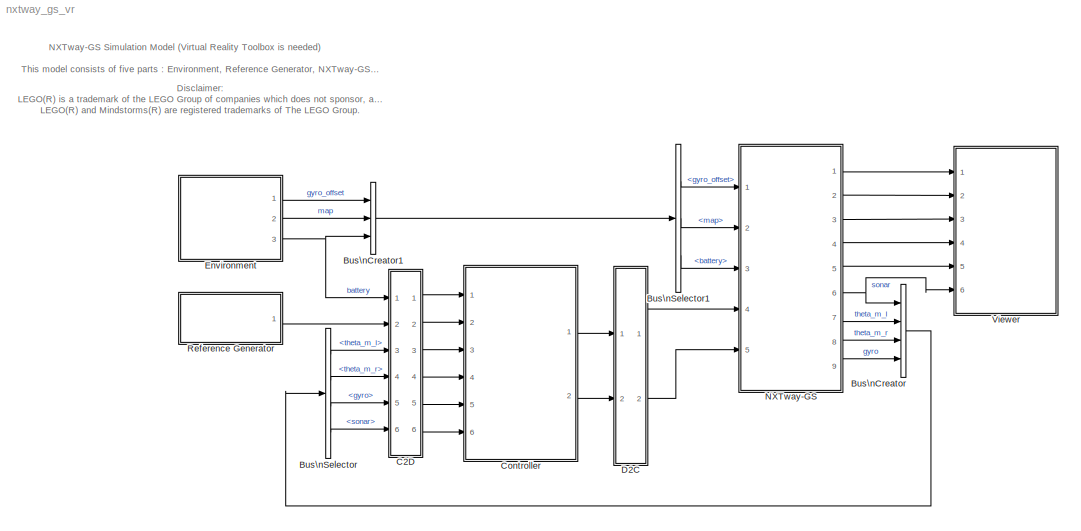
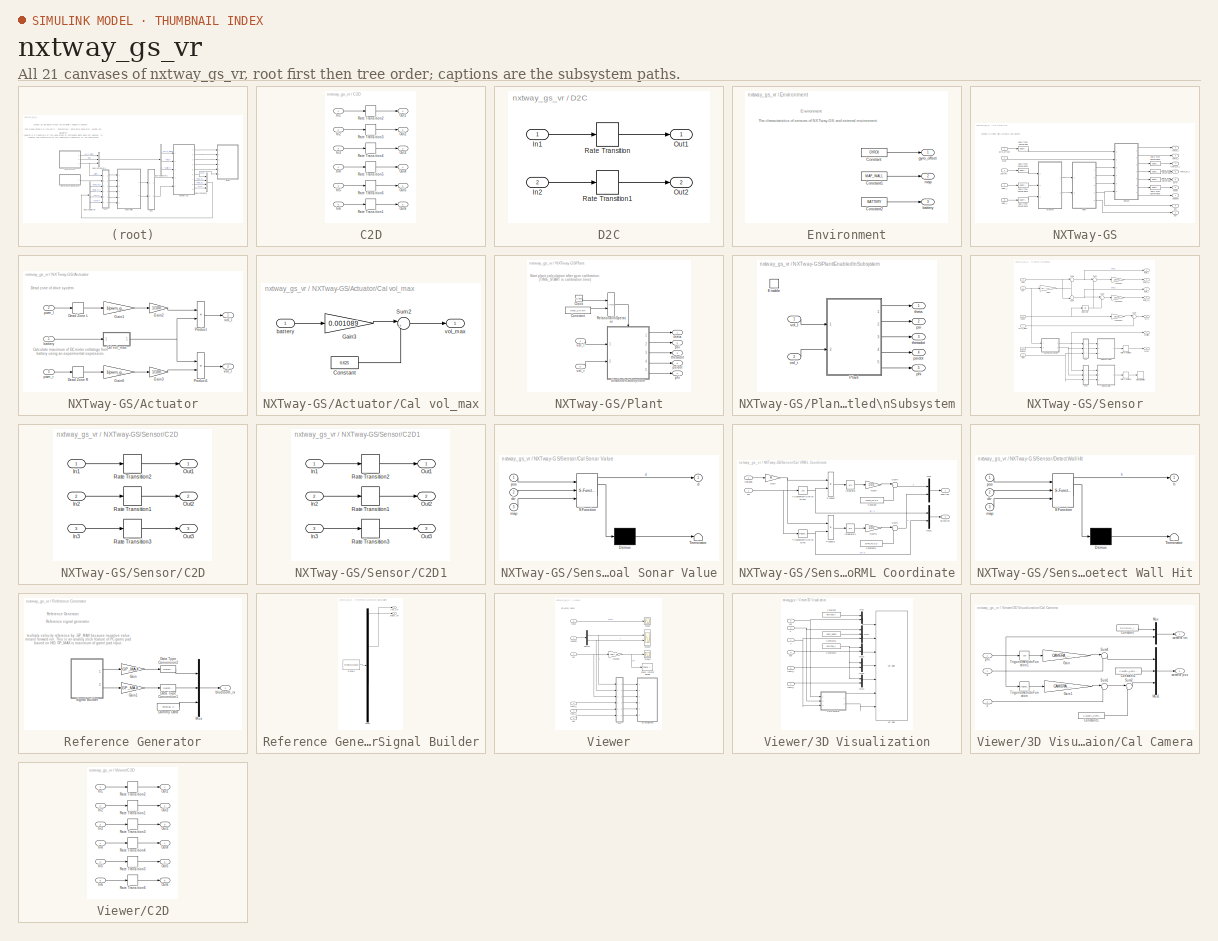
[diagram: thumbnail index - all 21 canvases of the model, root first then tree order]
MODEL nxtway_gs_vr
KIND model
CONFIG PreLoadFcn = param_nxtway_gs
BLOCK [BusCreator] Bus\nCreator
  DisplayOption = bar
  InheritFromInputs = on
  Inputs = 4
  Ports = [4, 1]
  SID = 1
BLOCK [BusCreator] Bus\nCreator1
  DisplayOption = bar
  InheritFromInputs = on
  Inputs = 3
  Ports = [3, 1]
  SID = 2
BLOCK [BusSelector] Bus\nSelector
  OutputAsBus = off
  OutputSignals = theta_m_l,theta_m_r,gyro,sonar
  Ports = [1, 4]
  SID = 3
BLOCK [BusSelector] Bus\nSelector1
  OutputAsBus = off
  OutputSignals = gyro_offset,map,battery
  Ports = [1, 3]
  SID = 4
BLOCK [SubSystem] C2D
  Ports = [6, 6]
  RequestExecContextInheritance = off
  SID = 5
BLOCK [Inport] C2D/In1
  IconDisplay = Port number
  SID = 6
BLOCK [Inport] C2D/In2
  IconDisplay = Port number
  Port = 2
  SID = 7
BLOCK [Inport] C2D/In3
  IconDisplay = Port number
  Port = 3
  SID = 8
BLOCK [Inport] C2D/In4
  IconDisplay = Port number
  Port = 4
  SID = 9
BLOCK [Inport] C2D/In5
  IconDisplay = Port number
  Port = 5
  SID = 10
BLOCK [Inport] C2D/In6
  IconDisplay = Port number
  Port = 6
  SID = 11
BLOCK [Outport] C2D/Out1
  IconDisplay = Port number
  SID = 18
BLOCK [Outport] C2D/Out2
  IconDisplay = Port number
  Port = 2
  SID = 19
BLOCK [Outport] C2D/Out3
  IconDisplay = Port number
  Port = 3
  SID = 20
BLOCK [Outport] C2D/Out4
  IconDisplay = Port number
  Port = 4
  SID = 21
BLOCK [Outport] C2D/Out5
  IconDisplay = Port number
  Port = 5
  SID = 22
BLOCK [Outport] C2D/Out6
  IconDisplay = Port number
  Port = 6
  SID = 23
BLOCK [RateTransition] C2D/Rate Transition1
  AttributesFormatString = Ts=%<OutPortSampleTime>
  Integrity = off
  OutPortSampleTime = TS
  SID = 12
BLOCK [RateTransition] C2D/Rate Transition2
  AttributesFormatString = Ts=%<OutPortSampleTime>
  Integrity = off
  OutPortSampleTime = TS
  SID = 13
BLOCK [RateTransition] C2D/Rate Transition3
  AttributesFormatString = Ts=%<OutPortSampleTime>
  Integrity = off
  OutPortSampleTime = TS
  SID = 14
BLOCK [RateTransition] C2D/Rate Transition4
  AttributesFormatString = Ts=%<OutPortSampleTime>
  Integrity = off
  OutPortSampleTime = TS
  SID = 15
BLOCK [RateTransition] C2D/Rate Transition5
  AttributesFormatString = Ts=%<OutPortSampleTime>
  Integrity = off
  OutPortSampleTime = TS
  SID = 16
BLOCK [RateTransition] C2D/Rate Transition6
  AttributesFormatString = Ts=%<OutPortSampleTime>
  Integrity = off
  OutPortSampleTime = TS
  SID = 17
BLOCK [ModelReference] Controller
  ModelNameDialog = nxtway_gs_controller
  ModelReferenceVersion = 1.721
  Ports = [6, 2]
  SID = 24
BLOCK [SubSystem] D2C
  Ports = [2, 2]
  RequestExecContextInheritance = off
  SID = 25
BLOCK [Inport] D2C/In1
  IconDisplay = Port number
  SID = 26
BLOCK [Inport] D2C/In2
  IconDisplay = Port number
  Port = 2
  SID = 27
BLOCK [Outport] D2C/Out1
  IconDisplay = Port number
  SID = 30
  SampleTime = 0
BLOCK [Outport] D2C/Out2
  IconDisplay = Port number
  Port = 2
  SID = 31
  SampleTime = 0
BLOCK [RateTransition] D2C/Rate Transition
  AttributesFormatString = Ts=%<OutPortSampleTime>
  Integrity = off
  OutPortSampleTime = 0
  SID = 28
BLOCK [RateTransition] D2C/Rate Transition1
  AttributesFormatString = Ts=%<OutPortSampleTime>
  Integrity = off
  OutPortSampleTime = 0
  SID = 29
BLOCK [SubSystem] Environment
  Ports = [0, 3]
  RequestExecContextInheritance = off
  SID = 32
BLOCK [Constant] Environment/Constant
  AttributesFormatString = DataType = %<OutDataTypeStr>
  OutDataTypeStr = uint16
  SID = 33
  Value = GYRO0
BLOCK [Constant] Environment/Constant1
  AttributesFormatString = DataType = %<OutDataTypeStr>
  OutDataTypeStr = boolean
  SID = 34
  Value = MAP_WALL
  VectorParams1D = off
BLOCK [Constant] Environment/Constant2
  AttributesFormatString = DataType = %<OutDataTypeStr>
  OutDataTypeStr = uint16
  SID = 35
  Value = BATTERY
BLOCK [Outport] Environment/battery
  IconDisplay = Port number
  Port = 3
  SID = 38
BLOCK [Outport] Environment/gyro_offset
  IconDisplay = Port number
  SID = 36
BLOCK [Outport] Environment/map
  IconDisplay = Port number
  Port = 2
  SID = 37
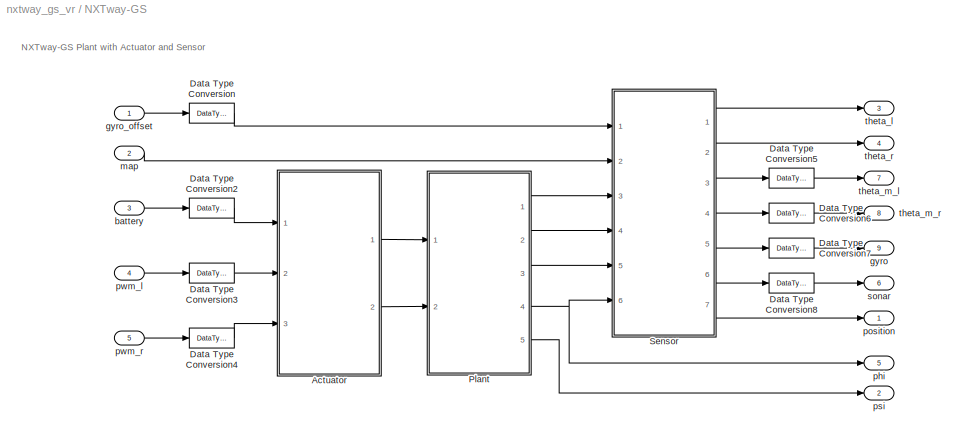
BLOCK [SubSystem] NXTway-GS
  Ports = [5, 9]
  RequestExecContextInheritance = off
  SID = 41
BLOCK [SubSystem] NXTway-GS/Actuator
  Ports = [3, 2]
  RequestExecContextInheritance = off
  SID = 47
BLOCK [SubSystem] NXTway-GS/Actuator/Cal vol_max
  Ports = [1, 1]
  RequestExecContextInheritance = off
  SID = 51
BLOCK [Constant] NXTway-GS/Actuator/Cal vol_max/Constant
  AttributesFormatString = DataType = %<OutDataTypeStr>
  OutDataTypeStr = double
  SID = 53
  Value = 0.625
BLOCK [Gain] NXTway-GS/Actuator/Cal vol_max/Gain3
  Gain = 0.001089
  SID = 54
  SaturateOnIntegerOverflow = off
BLOCK [Sum] NXTway-GS/Actuator/Cal vol_max/Sum2
  IconShape = round
  InputSameDT = off
  Inputs = |+-
  Ports = [2, 1]
  SID = 55
  SaturateOnIntegerOverflow = off
BLOCK [Inport] NXTway-GS/Actuator/Cal vol_max/battery
  IconDisplay = Port number
  SID = 52
BLOCK [Outport] NXTway-GS/Actuator/Cal vol_max/vol_max
  IconDisplay = Port number
  SID = 56
BLOCK [DeadZone] NXTway-GS/Actuator/Dead Zone L
  AttributesFormatString = start=%<LowerValue>\\nend=%<UpperValue>
  LowerValue = -pwm_offset
  SID = 57
  UpperValue = pwm_offset
BLOCK [DeadZone] NXTway-GS/Actuator/Dead Zone R
  AttributesFormatString = start=%<LowerValue>\\nend=%<UpperValue>
  LowerValue = -pwm_offset
  SID = 58
  UpperValue = pwm_offset
BLOCK [Gain] NXTway-GS/Actuator/Gain1
  Gain = 1/pwm_gain
  SID = 59
  SaturateOnIntegerOverflow = off
BLOCK [Gain] NXTway-GS/Actuator/Gain2
  Gain = 1/100
  SID = 60
  SaturateOnIntegerOverflow = off
BLOCK [Gain] NXTway-GS/Actuator/Gain3
  Gain = 1/100
  SID = 61
  SaturateOnIntegerOverflow = off
BLOCK [Gain] NXTway-GS/Actuator/Gain6
  Gain = 1/pwm_gain
  SID = 62
  SaturateOnIntegerOverflow = off
BLOCK [Product] NXTway-GS/Actuator/Product
  InputSameDT = off
  OutDataTypeStr = Inherit: Inherit via internal rule
  Ports = [2, 1]
  RndMeth = Simplest
  SID = 63
  SaturateOnIntegerOverflow = off
BLOCK [Product] NXTway-GS/Actuator/Product1
  InputSameDT = off
  OutDataTypeStr = Inherit: Inherit via internal rule
  Ports = [2, 1]
  RndMeth = Simplest
  SID = 64
  SaturateOnIntegerOverflow = off
BLOCK [Inport] NXTway-GS/Actuator/battery
  IconDisplay = Port number
  SID = 48
BLOCK [Inport] NXTway-GS/Actuator/pwm_l
  IconDisplay = Port number
  Port = 2
  SID = 49
BLOCK [Inport] NXTway-GS/Actuator/pwm_r
  IconDisplay = Port number
  Port = 3
  SID = 50
BLOCK [Outport] NXTway-GS/Actuator/vol_l
  IconDisplay = Port number
  SID = 65
BLOCK [Outport] NXTway-GS/Actuator/vol_r
  IconDisplay = Port number
  Port = 2
  SID = 66
BLOCK [DataTypeConversion] NXTway-GS/Data Type Conversion
  AttributesFormatString = Round = %<RndMeth>
  OutDataTypeStr = double
  RndMeth = Nearest
  SID = 69
  SaturateOnIntegerOverflow = off
BLOCK [DataTypeConversion] NXTway-GS/Data Type Conversion2
  AttributesFormatString = Round = %<RndMeth>
  OutDataTypeStr = double
  RndMeth = Nearest
  SID = 70
  SaturateOnIntegerOverflow = off
BLOCK [DataTypeConversion] NXTway-GS/Data Type Conversion3
  AttributesFormatString = Round = %<RndMeth>
  OutDataTypeStr = double
  RndMeth = Nearest
  SID = 71
  SaturateOnIntegerOverflow = off
BLOCK [DataTypeConversion] NXTway-GS/Data Type Conversion4
  AttributesFormatString = Round = %<RndMeth>
  OutDataTypeStr = double
  RndMeth = Nearest
  SID = 72
  SaturateOnIntegerOverflow = off
BLOCK [DataTypeConversion] NXTway-GS/Data Type Conversion5
  AttributesFormatString = Round = %<RndMeth>
  OutDataTypeStr = int32
  RndMeth = Nearest
  SID = 73
  SaturateOnIntegerOverflow = off
BLOCK [DataTypeConversion] NXTway-GS/Data Type Conversion6
  AttributesFormatString = Round = %<RndMeth>
  OutDataTypeStr = int32
  RndMeth = Nearest
  SID = 74
  SaturateOnIntegerOverflow = off
BLOCK [DataTypeConversion] NXTway-GS/Data Type Conversion7
  AttributesFormatString = Round = %<RndMeth>
  OutDataTypeStr = uint16
  RndMeth = Nearest
  SID = 75
  SaturateOnIntegerOverflow = off
BLOCK [DataTypeConversion] NXTway-GS/Data Type Conversion8
  AttributesFormatString = Round = %<RndMeth>
  OutDataTypeStr = int32
  RndMeth = Nearest
  SID = 76
  SaturateOnIntegerOverflow = off
BLOCK [SubSystem] NXTway-GS/Plant
  Ports = [2, 5]
  RequestExecContextInheritance = off
  SID = 77
BLOCK [Clock] NXTway-GS/Plant/Clock
  Decimation = 1
  SID = 80
BLOCK [Constant] NXTway-GS/Plant/Constant
  AttributesFormatString = DataType = %<OutDataTypeStr>
  OutDataTypeStr = double
  SID = 81
  Value = TIME_START
BLOCK [SubSystem] NXTway-GS/Plant/Enabled\nSubsystem
  Ports = [2, 5, 1]
  RequestExecContextInheritance = off
  SID = 82
  TreatAsAtomicUnit = on
BLOCK [EnablePort] NXTway-GS/Plant/Enabled\nSubsystem/Enable
  Ports = []
  SID = 85
BLOCK [ModelReference] NXTway-GS/Plant/Enabled\nSubsystem/Plant
  ModelNameDialog = nxtway_gs_plant
  ModelReferenceVersion = 1.41
  Ports = [2, 5]
  SID = 86
BLOCK [Outport] NXTway-GS/Plant/Enabled\nSubsystem/phi
  IconDisplay = Port number
  InitialOutput = 0
  Port = 5
  SID = 91
BLOCK [Outport] NXTway-GS/Plant/Enabled\nSubsystem/psi
  IconDisplay = Port number
  InitialOutput = 0
  Port = 2
  SID = 88
BLOCK [Outport] NXTway-GS/Plant/Enabled\nSubsystem/psidot
  IconDisplay = Port number
  InitialOutput = 0
  Port = 4
  SID = 90
BLOCK [Outport] NXTway-GS/Plant/Enabled\nSubsystem/theta
  IconDisplay = Port number
  InitialOutput = 0
  SID = 87
BLOCK [Outport] NXTway-GS/Plant/Enabled\nSubsystem/thetadot
  IconDisplay = Port number
  InitialOutput = 0
  Port = 3
  SID = 89
BLOCK [Inport] NXTway-GS/Plant/Enabled\nSubsystem/vol_l
  IconDisplay = Port number
  SID = 83
BLOCK [Inport] NXTway-GS/Plant/Enabled\nSubsystem/vol_r
  IconDisplay = Port number
  Port = 2
  SID = 84
BLOCK [RelationalOperator] NXTway-GS/Plant/Relational\nOperator
  InputSameDT = off
  OutDataTypeStr = boolean
  Ports = [2, 1]
  SID = 92
BLOCK [Outport] NXTway-GS/Plant/phi
  IconDisplay = Port number
  Port = 4
  SID = 96
BLOCK [Outport] NXTway-GS/Plant/psi
  IconDisplay = Port number
  Port = 5
  SID = 97
BLOCK [Outport] NXTway-GS/Plant/psidot
  IconDisplay = Port number
  Port = 2
  SID = 94
BLOCK [Outport] NXTway-GS/Plant/theta
  IconDisplay = Port number
  SID = 93
BLOCK [Outport] NXTway-GS/Plant/thetadot
  IconDisplay = Port number
  Port = 3
  SID = 95
BLOCK [Inport] NXTway-GS/Plant/vol_l
  IconDisplay = Port number
  SID = 78
BLOCK [Inport] NXTway-GS/Plant/vol_r
  IconDisplay = Port number
  Port = 2
  SID = 79
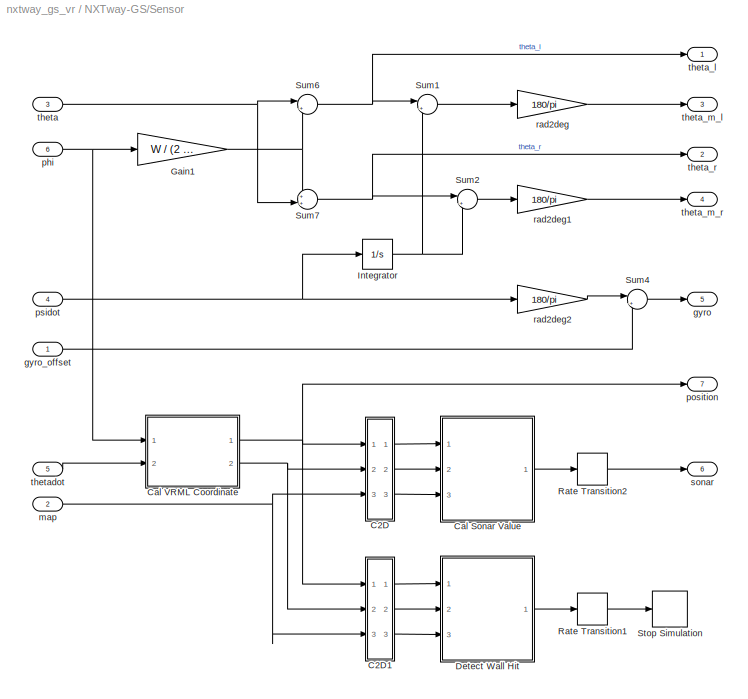
BLOCK [SubSystem] NXTway-GS/Sensor
  Ports = [6, 7]
  RequestExecContextInheritance = off
  SID = 99
BLOCK [SubSystem] NXTway-GS/Sensor/C2D
  Ports = [3, 3]
  RequestExecContextInheritance = off
  SID = 106
BLOCK [Inport] NXTway-GS/Sensor/C2D/In1
  IconDisplay = Port number
  SID = 107
BLOCK [Inport] NXTway-GS/Sensor/C2D/In2
  IconDisplay = Port number
  Port = 2
  SID = 108
BLOCK [Inport] NXTway-GS/Sensor/C2D/In3
  IconDisplay = Port number
  Port = 3
  SID = 109
BLOCK [Outport] NXTway-GS/Sensor/C2D/Out1
  IconDisplay = Port number
  SID = 113
BLOCK [Outport] NXTway-GS/Sensor/C2D/Out2
  IconDisplay = Port number
  Port = 2
  SID = 114
BLOCK [Outport] NXTway-GS/Sensor/C2D/Out3
  IconDisplay = Port number
  Port = 3
  SID = 115
BLOCK [RateTransition] NXTway-GS/Sensor/C2D/Rate Transition1
  AttributesFormatString = Ts=%<OutPortSampleTime>
  Integrity = off
  OutPortSampleTime = TS_SONAR
  SID = 110
BLOCK [RateTransition] NXTway-GS/Sensor/C2D/Rate Transition2
  AttributesFormatString = Ts=%<OutPortSampleTime>
  Integrity = off
  OutPortSampleTime = TS_SONAR
  SID = 111
BLOCK [RateTransition] NXTway-GS/Sensor/C2D/Rate Transition3
  AttributesFormatString = Ts=%<OutPortSampleTime>
  Integrity = off
  OutPortSampleTime = TS_SONAR
  SID = 112
BLOCK [SubSystem] NXTway-GS/Sensor/C2D1
  Ports = [3, 3]
  RequestExecContextInheritance = off
  SID = 116
BLOCK [Inport] NXTway-GS/Sensor/C2D1/In1
  IconDisplay = Port number
  SID = 117
BLOCK [Inport] NXTway-GS/Sensor/C2D1/In2
  IconDisplay = Port number
  Port = 2
  SID = 118
BLOCK [Inport] NXTway-GS/Sensor/C2D1/In3
  IconDisplay = Port number
  Port = 3
  SID = 119
BLOCK [Outport] NXTway-GS/Sensor/C2D1/Out1
  IconDisplay = Port number
  SID = 123
BLOCK [Outport] NXTway-GS/Sensor/C2D1/Out2
  IconDisplay = Port number
  Port = 2
  SID = 124
BLOCK [Outport] NXTway-GS/Sensor/C2D1/Out3
  IconDisplay = Port number
  Port = 3
  SID = 125
BLOCK [RateTransition] NXTway-GS/Sensor/C2D1/Rate Transition1
  AttributesFormatString = Ts=%<OutPortSampleTime>
  Integrity = off
  OutPortSampleTime = TS_WALL
  SID = 120
BLOCK [RateTransition] NXTway-GS/Sensor/C2D1/Rate Transition2
  AttributesFormatString = Ts=%<OutPortSampleTime>
  Integrity = off
  OutPortSampleTime = TS_WALL
  SID = 121
BLOCK [RateTransition] NXTway-GS/Sensor/C2D1/Rate Transition3
  AttributesFormatString = Ts=%<OutPortSampleTime>
  Integrity = off
  OutPortSampleTime = TS_WALL
  SID = 122
BLOCK [SubSystem] NXTway-GS/Sensor/Cal Sonar Value
  ErrorFcn = Stateflow.Translate.translate
  PermitHierarchicalResolution = ExplicitOnly
  Ports = [3, 1]
  RequestExecContextInheritance = off
  SFBlockType = MATLAB Function
  SID = 126
  TreatAsAtomicUnit = on
BLOCK [Demux] NXTway-GS/Sensor/Cal Sonar Value/ Demux 
  Outputs = 1
  Ports = [1, 1]
  SID = 126::9
BLOCK [S-Function] NXTway-GS/Sensor/Cal Sonar Value/ SFunction 
  EnableBusSupport = off
  FunctionName = sf_sfun
  PortCounts = [3 2]
  Ports = [3, 2]
  SFcnIsStateOwnerBlock = off
  SFunctionDeploymentMode = off
  SID = 126::8
  Tag = Stateflow S-Function 2
BLOCK [Terminator] NXTway-GS/Sensor/Cal Sonar Value/ Terminator 
  SID = 126::10
BLOCK [Outport] NXTway-GS/Sensor/Cal Sonar Value/d
  IconDisplay = Port number
  SID = 126::7
BLOCK [Inport] NXTway-GS/Sensor/Cal Sonar Value/dir
  IconDisplay = Port number
  Port = 2
  SID = 126::2
BLOCK [Inport] NXTway-GS/Sensor/Cal Sonar Value/map
  IconDisplay = Port number
  Port = 3
  SID = 126::3
BLOCK [Inport] NXTway-GS/Sensor/Cal Sonar Value/pos
  IconDisplay = Port number
  SID = 126::1
BLOCK [SubSystem] NXTway-GS/Sensor/Cal VRML Coordinate
  Ports = [2, 2]
  RequestExecContextInheritance = off
  SID = 127
BLOCK [Constant] NXTway-GS/Sensor/Cal VRML Coordinate/Constant
  AttributesFormatString = DataType = %<OutDataTypeStr>
  OutDataTypeStr = double
  SID = 130
  Value = START_POS(1)
BLOCK [Constant] NXTway-GS/Sensor/Cal VRML Coordinate/Constant1
  AttributesFormatString = DataType = %<OutDataTypeStr>
  OutDataTypeStr = double
  SID = 131
  Value = START_POS(2)
BLOCK [Gain] NXTway-GS/Sensor/Cal VRML Coordinate/Gain
  Gain = R
  OutDataTypeStr = Inherit: Inherit via internal rule
  ParamDataTypeStr = Inherit: Inherit via internal rule
  SID = 132
  SaturateOnIntegerOverflow = off
BLOCK [Integrator] NXTway-GS/Sensor/Cal VRML Coordinate/Integrator
  Ports = [1, 1]
  SID = 133
BLOCK [Integrator] NXTway-GS/Sensor/Cal VRML Coordinate/Integrator1
  Ports = [1, 1]
  SID = 134
BLOCK [Mux] NXTway-GS/Sensor/Cal VRML Coordinate/Mux
  DisplayOption = bar
  Inputs = 2
  Ports = [2, 1]
  SID = 135
BLOCK [Mux] NXTway-GS/Sensor/Cal VRML Coordinate/Mux1
  DisplayOption = bar
  Inputs = 2
  Ports = [2, 1]
  SID = 136
BLOCK [Product] NXTway-GS/Sensor/Cal VRML Coordinate/Product
  InputSameDT = off
  OutDataTypeStr = Inherit: Inherit via internal rule
  Ports = [2, 1]
  RndMeth = Simplest
  SID = 137
  SaturateOnIntegerOverflow = off
BLOCK [Product] NXTway-GS/Sensor/Cal VRML Coordinate/Product1
  InputSameDT = off
  OutDataTypeStr = Inherit: Inherit via internal rule
  Ports = [2, 1]
  RndMeth = Simplest
  SID = 138
  SaturateOnIntegerOverflow = off
BLOCK [Sum] NXTway-GS/Sensor/Cal VRML Coordinate/Sum1
  IconShape = round
  InputSameDT = off
  Inputs = |++
  OutDataTypeStr = Inherit: Inherit via internal rule
  Ports = [2, 1]
  SID = 139
  SaturateOnIntegerOverflow = off
BLOCK [Sum] NXTway-GS/Sensor/Cal VRML Coordinate/Sum4
  IconShape = round
  InputSameDT = off
  Inputs = |++
  OutDataTypeStr = Inherit: Inherit via internal rule
  Ports = [2, 1]
  SID = 140
  SaturateOnIntegerOverflow = off
BLOCK [Trigonometry] NXTway-GS/Sensor/Cal VRML Coordinate/Trigonometric\nFunction
  Ports = [1, 1]
  SID = 141
BLOCK [Trigonometry] NXTway-GS/Sensor/Cal VRML Coordinate/Trigonometric\nFunction1
  Operator = cos
  Ports = [1, 1]
  SID = 142
BLOCK [Outport] NXTway-GS/Sensor/Cal VRML Coordinate/direction
  IconDisplay = Port number
  Port = 2
  SID = 146
BLOCK [Gain] NXTway-GS/Sensor/Cal VRML Coordinate/m2cm
  Gain = 100
  OutDataTypeStr = Inherit: Inherit via internal rule
  ParamDataTypeStr = Inherit: Inherit via internal rule
  SID = 143
  SaturateOnIntegerOverflow = off
BLOCK [Gain] NXTway-GS/Sensor/Cal VRML Coordinate/m2cm1
  Gain = 100
  OutDataTypeStr = Inherit: Inherit via internal rule
  ParamDataTypeStr = Inherit: Inherit via internal rule
  SID = 144
  SaturateOnIntegerOverflow = off
BLOCK [Inport] NXTway-GS/Sensor/Cal VRML Coordinate/phi
  IconDisplay = Port number
  SID = 128
BLOCK [Outport] NXTway-GS/Sensor/Cal VRML Coordinate/position
  IconDisplay = Port number
  SID = 145
BLOCK [Inport] NXTway-GS/Sensor/Cal VRML Coordinate/thetadot
  IconDisplay = Port number
  Port = 2
  SID = 129
BLOCK [SubSystem] NXTway-GS/Sensor/Detect Wall Hit
  ErrorFcn = Stateflow.Translate.translate
  PermitHierarchicalResolution = ExplicitOnly
  Ports = [3, 1]
  RequestExecContextInheritance = off
  SFBlockType = MATLAB Function
  SID = 147
  TreatAsAtomicUnit = on
BLOCK [Demux] NXTway-GS/Sensor/Detect Wall Hit/ Demux 
  Outputs = 1
  Ports = [1, 1]
  SID = 147::9
BLOCK [S-Function] NXTway-GS/Sensor/Detect Wall Hit/ SFunction 
  EnableBusSupport = off
  FunctionName = sf_sfun
  Parameters = D,W
  PortCounts = [3 2]
  Ports = [3, 2]
  SFcnIsStateOwnerBlock = off
  SFunctionDeploymentMode = off
  SID = 147::8
  Tag = Stateflow S-Function 1
BLOCK [Terminator] NXTway-GS/Sensor/Detect Wall Hit/ Terminator 
  SID = 147::10
BLOCK [Inport] NXTway-GS/Sensor/Detect Wall Hit/dir
  IconDisplay = Port number
  Port = 2
  SID = 147::2
BLOCK [Outport] NXTway-GS/Sensor/Detect Wall Hit/h
  IconDisplay = Port number
  SID = 147::7
BLOCK [Inport] NXTway-GS/Sensor/Detect Wall Hit/map
  IconDisplay = Port number
  Port = 3
  SID = 147::3
BLOCK [Inport] NXTway-GS/Sensor/Detect Wall Hit/pos
  IconDisplay = Port number
  SID = 147::1
BLOCK [Gain] NXTway-GS/Sensor/Gain1
  Gain = W / (2 * R)
  OutDataTypeStr = Inherit: Inherit via internal rule
  ParamDataTypeStr = Inherit: Inherit via internal rule
  SID = 148
  SaturateOnIntegerOverflow = off
BLOCK [Integrator] NXTway-GS/Sensor/Integrator
  Ports = [1, 1]
  SID = 149
BLOCK [RateTransition] NXTway-GS/Sensor/Rate Transition1
  AttributesFormatString = Ts=%<OutPortSampleTime>
  Integrity = off
  OutPortSampleTime = 0
  SID = 150
BLOCK [RateTransition] NXTway-GS/Sensor/Rate Transition2
  AttributesFormatString = Ts=%<OutPortSampleTime>
  Integrity = off
  OutPortSampleTime = 0
  SID = 151
BLOCK [Stop] NXTway-GS/Sensor/Stop Simulation
  SID = 152
BLOCK [Sum] NXTway-GS/Sensor/Sum1
  IconShape = round
  InputSameDT = off
  Inputs = |+-
  OutDataTypeStr = Inherit: Inherit via internal rule
  Ports = [2, 1]
  SID = 153
  SaturateOnIntegerOverflow = off
BLOCK [Sum] NXTway-GS/Sensor/Sum2
  IconShape = round
  InputSameDT = off
  Inputs = |+-
  OutDataTypeStr = Inherit: Inherit via internal rule
  Ports = [2, 1]
  SID = 154
  SaturateOnIntegerOverflow = off
BLOCK [Sum] NXTway-GS/Sensor/Sum4
  IconShape = round
  InputSameDT = off
  Inputs = |++
  OutDataTypeStr = Inherit: Inherit via internal rule
  Ports = [2, 1]
  SID = 155
  SaturateOnIntegerOverflow = off
BLOCK [Sum] NXTway-GS/Sensor/Sum6
  IconShape = round
  InputSameDT = off
  Inputs = |+-
  OutDataTypeStr = Inherit: Inherit via internal rule
  Ports = [2, 1]
  SID = 156
  SaturateOnIntegerOverflow = off
BLOCK [Sum] NXTway-GS/Sensor/Sum7
  IconShape = round
  InputSameDT = off
  Inputs = ++|
  OutDataTypeStr = Inherit: Inherit via internal rule
  Ports = [2, 1]
  SID = 157
  SaturateOnIntegerOverflow = off
BLOCK [Outport] NXTway-GS/Sensor/gyro
  IconDisplay = Port number
  Port = 5
  SID = 165
BLOCK [Inport] NXTway-GS/Sensor/gyro_offset
  IconDisplay = Port number
  SID = 100
BLOCK [Inport] NXTway-GS/Sensor/map
  IconDisplay = Port number
  Port = 2
  SID = 101
BLOCK [Inport] NXTway-GS/Sensor/phi
  IconDisplay = Port number
  Port = 6
  SID = 105
BLOCK [Outport] NXTway-GS/Sensor/position
  IconDisplay = Port number
  Port = 7
  SID = 167
BLOCK [Inport] NXTway-GS/Sensor/psidot
  IconDisplay = Port number
  Port = 4
  SID = 103
BLOCK [Gain] NXTway-GS/Sensor/rad2deg
  Gain = 180/pi
  OutDataTypeStr = Inherit: Inherit via internal rule
  ParamDataTypeStr = Inherit: Inherit via internal rule
  SID = 158
  SaturateOnIntegerOverflow = off
BLOCK [Gain] NXTway-GS/Sensor/rad2deg1
  Gain = 180/pi
  OutDataTypeStr = Inherit: Inherit via internal rule
  ParamDataTypeStr = Inherit: Inherit via internal rule
  SID = 159
  SaturateOnIntegerOverflow = off
BLOCK [Gain] NXTway-GS/Sensor/rad2deg2
  Gain = 180/pi
  OutDataTypeStr = Inherit: Inherit via internal rule
  ParamDataTypeStr = Inherit: Inherit via internal rule
  SID = 160
  SaturateOnIntegerOverflow = off
BLOCK [Outport] NXTway-GS/Sensor/sonar
  IconDisplay = Port number
  Port = 6
  SID = 166
BLOCK [Inport] NXTway-GS/Sensor/theta
  IconDisplay = Port number
  Port = 3
  SID = 102
BLOCK [Outport] NXTway-GS/Sensor/theta_l
  IconDisplay = Port number
  SID = 161
BLOCK [Outport] NXTway-GS/Sensor/theta_m_l
  IconDisplay = Port number
  Port = 3
  SID = 163
BLOCK [Outport] NXTway-GS/Sensor/theta_m_r
  IconDisplay = Port number
  Port = 4
  SID = 164
BLOCK [Outport] NXTway-GS/Sensor/theta_r
  IconDisplay = Port number
  Port = 2
  SID = 162
BLOCK [Inport] NXTway-GS/Sensor/thetadot
  IconDisplay = Port number
  Port = 5
  SID = 104
BLOCK [Inport] NXTway-GS/battery
  IconDisplay = Port number
  Port = 3
  SID = 44
BLOCK [Outport] NXTway-GS/gyro
  IconDisplay = Port number
  Port = 9
  SID = 176
BLOCK [Inport] NXTway-GS/gyro_offset
  IconDisplay = Port number
  SID = 42
BLOCK [Inport] NXTway-GS/map
  IconDisplay = Port number
  Port = 2
  SID = 43
BLOCK [Outport] NXTway-GS/phi
  IconDisplay = Port number
  Port = 5
  SID = 172
BLOCK [Outport] NXTway-GS/position
  IconDisplay = Port number
  SID = 168
BLOCK [Outport] NXTway-GS/psi
  IconDisplay = Port number
  Port = 2
  SID = 169
BLOCK [Inport] NXTway-GS/pwm_l
  IconDisplay = Port number
  Port = 4
  SID = 45
BLOCK [Inport] NXTway-GS/pwm_r
  IconDisplay = Port number
  Port = 5
  SID = 46
BLOCK [Outport] NXTway-GS/sonar
  IconDisplay = Port number
  Port = 6
  SID = 173
BLOCK [Outport] NXTway-GS/theta_l
  IconDisplay = Port number
  Port = 3
  SID = 170
BLOCK [Outport] NXTway-GS/theta_m_l
  IconDisplay = Port number
  Port = 7
  SID = 174
BLOCK [Outport] NXTway-GS/theta_m_r
  IconDisplay = Port number
  Port = 8
  SID = 175
BLOCK [Outport] NXTway-GS/theta_r
  IconDisplay = Port number
  Port = 4
  SID = 171
BLOCK [SubSystem] Reference Generator
  Ports = [0, 1]
  RequestExecContextInheritance = off
  SID = 178
BLOCK [DataTypeConversion] Reference Generator/Data Type Conversion1
  AttributesFormatString = Round = %<RndMeth>
  OutDataTypeStr = uint8
  RndMeth = Nearest
  SID = 179
  SaturateOnIntegerOverflow = off
BLOCK [DataTypeConversion] Reference Generator/Data Type Conversion2
  AttributesFormatString = Round = %<RndMeth>
  OutDataTypeStr = uint8
  RndMeth = Nearest
  SID = 180
  SaturateOnIntegerOverflow = off
BLOCK [Constant] Reference Generator/Dummy Data
  AttributesFormatString = DataType = %<OutDataTypeStr>
  OutDataTypeStr = uint8
  SID = 181
  Value = zeros(30, 1)
BLOCK [Gain] Reference Generator/Gain
  Gain = -GP_MAX
  SID = 182
  SaturateOnIntegerOverflow = off
BLOCK [Gain] Reference Generator/Gain1
  Gain = GP_MAX
  SID = 183
  SaturateOnIntegerOverflow = off
BLOCK [Mux] Reference Generator/Mux
  DisplayOption = bar
  Inputs = 3
  Ports = [3, 1]
  SID = 184
BLOCK [SubSystem] Reference Generator/Signal Builder
  ClipboardFcn = sigbuilder_block('clipboard');
  CloseFcn = sigbuilder_block('close');
  ContinueFcn = sigbuilder_block('continue')
  CopyFcn = sigbuilder_block('copy');
  DeleteFcn = sigbuilder_block('delete');
  LoadFcn = sigbuilder_block('load');
  MaskHideContents = on
  ModelCloseFcn = sigbuilder_block('modelClose');
  NameChangeFcn = sigbuilder_block('namechange');
  OpenFcn = sigbuilder_block('open',[102.75 71.25 516 349.5 ]);
  PauseFcn = sigbuilder_block('pause')
  Ports = [0, 2]
  PreSaveFcn = sigbuilder_block('preSave');
  RequestExecContextInheritance = off
  SID = 185
  StartFcn = sigbuilder_block('start');
  StopFcn = sigbuilder_block('stop');
  Tag = STV Subsys
BLOCK [Demux] Reference Generator/Signal Builder/Demux
  Outputs = 2
  Ports = [1, 2]
  SID = 186
  Tag = STV Demux
BLOCK [FromWorkspace] Reference Generator/Signal Builder/FromWs
  SID = 187
  SampleTime = 0
  SigBuilderData = DataTag0
  Tag = STV FromWs
  VariableName = tuvar
  VnvData = DataTag1
  ZeroCross = on
BLOCK [Outport] Reference Generator/Signal Builder/phidot_ref
  IconDisplay = Port number
  Port = 2
  SID = 189
  Tag = STV Outport
BLOCK [Outport] Reference Generator/Signal Builder/rdot_ref
  IconDisplay = Port number
  SID = 188
  Tag = STV Outport
BLOCK [Outport] Reference Generator/bluetooth_rx
  IconDisplay = Port number
  SID = 190
BLOCK [SubSystem] Viewer
  Ports = [6]
  RequestExecContextInheritance = off
  SID = 194
BLOCK [SubSystem] Viewer/3D Visualization
  Ports = [6]
  RequestExecContextInheritance = off
  SID = 201
BLOCK [SubSystem] Viewer/3D Visualization/Cal Camera
  Ports = [3, 2]
  RequestExecContextInheritance = off
  SID = 208
BLOCK [Constant] Viewer/3D Visualization/Cal Camera/Constant
  AttributesFormatString = DataType = %<OutDataTypeStr>
  SID = 212
  Value = ROTATION_Y
BLOCK [Constant] Viewer/3D Visualization/Cal Camera/Constant1
  AttributesFormatString = DataType = %<OutDataTypeStr>
  SID = 213
  Value = CAMERA_OFFSET
BLOCK [Constant] Viewer/3D Visualization/Cal Camera/Constant2
  AttributesFormatString = DataType = %<OutDataTypeStr>
  SID = 214
  Value = CAMERA_HEIGHT
BLOCK [Gain] Viewer/3D Visualization/Cal Camera/Gain
  Gain = CAMERA_DISTANCE
  OutDataTypeStr = Inherit: Inherit via internal rule
  ParamDataTypeStr = Inherit: Inherit via internal rule
  SID = 215
  SaturateOnIntegerOverflow = off
BLOCK [Gain] Viewer/3D Visualization/Cal Camera/Gain1
  Gain = CAMERA_DISTANCE
  OutDataTypeStr = Inherit: Inherit via internal rule
  ParamDataTypeStr = Inherit: Inherit via internal rule
  SID = 216
  SaturateOnIntegerOverflow = off
BLOCK [Mux] Viewer/3D Visualization/Cal Camera/Mux
  DisplayOption = bar
  Inputs = 2
  Ports = [2, 1]
  SID = 217
BLOCK [Mux] Viewer/3D Visualization/Cal Camera/Mux1
  DisplayOption = bar
  Inputs = 3
  Ports = [3, 1]
  SID = 218
BLOCK [Sum] Viewer/3D Visualization/Cal Camera/Sum1
  IconShape = round
  InputSameDT = off
  Inputs = |++
  OutDataTypeStr = Inherit: Inherit via internal rule
  Ports = [2, 1]
  SID = 219
  SaturateOnIntegerOverflow = off
BLOCK [Sum] Viewer/3D Visualization/Cal Camera/Sum2
  IconShape = round
  InputSameDT = off
  Inputs = |++
  OutDataTypeStr = Inherit: Inherit via internal rule
  Ports = [2, 1]
  SID = 220
  SaturateOnIntegerOverflow = off
BLOCK [Sum] Viewer/3D Visualization/Cal Camera/Sum4
  IconShape = round
  InputSameDT = off
  Inputs = |-+
  OutDataTypeStr = Inherit: Inherit via internal rule
  Ports = [2, 1]
  SID = 221
  SaturateOnIntegerOverflow = off
BLOCK [Trigonometry] Viewer/3D Visualization/Cal Camera/Trigonometric\nFunction
  Ports = [1, 1]
  SID = 222
BLOCK [Trigonometry] Viewer/3D Visualization/Cal Camera/Trigonometric\nFunction1
  Operator = cos
  Ports = [1, 1]
  SID = 223
BLOCK [Outport] Viewer/3D Visualization/Cal Camera/camera pos
  IconDisplay = Port number
  Port = 2
  SID = 225
BLOCK [Outport] Viewer/3D Visualization/Cal Camera/camera rot
  IconDisplay = Port number
  SID = 224
BLOCK [Inport] Viewer/3D Visualization/Cal Camera/phi
  IconDisplay = Port number
  SID = 209
BLOCK [Inport] Viewer/3D Visualization/Cal Camera/x
  IconDisplay = Port number
  Port = 2
  SID = 210
BLOCK [Inport] Viewer/3D Visualization/Cal Camera/z
  IconDisplay = Port number
  Port = 3
  SID = 211
BLOCK [Constant] Viewer/3D Visualization/Constant
  AttributesFormatString = DataType = %<OutDataTypeStr>
  OutDataTypeStr = double
  SID = 226
  Value = ROTATION_Y
BLOCK [Constant] Viewer/3D Visualization/Constant2
  AttributesFormatString = DataType = %<OutDataTypeStr>
  OutDataTypeStr = double
  SID = 227
  Value = BODY_HEIGHT
BLOCK [Constant] Viewer/3D Visualization/Constant3
  AttributesFormatString = DataType = %<OutDataTypeStr>
  OutDataTypeStr = double
  SID = 228
  Value = ROTATION_X
BLOCK [Mux] Viewer/3D Visualization/Mux
  DisplayOption = bar
  Inputs = 2
  Ports = [2, 1]
  SID = 229
BLOCK [Mux] Viewer/3D Visualization/Mux1
  DisplayOption = bar
  Inputs = 3
  Ports = [3, 1]
  SID = 230
BLOCK [Mux] Viewer/3D Visualization/Mux2
  DisplayOption = bar
  Inputs = 2
  Ports = [2, 1]
  SID = 231
BLOCK [Mux] Viewer/3D Visualization/Mux3
  DisplayOption = bar
  Inputs = 2
  Ports = [2, 1]
  SID = 232
BLOCK [Mux] Viewer/3D Visualization/Mux4
  DisplayOption = bar
  Inputs = 2
  Ports = [2, 1]
  SID = 233
BLOCK [Reference] Viewer/3D Visualization/VR Sink  REF=vrlib/VR Sink
  AllowVariableSize = off
  AutoView = on
  FieldsWritten = NXT.rotation.4.1.double#NXT.translation.3.1.double#NXT_body.rotation.4.1.double#NXT_tyreR.rotation.4.1.double#NXT_tyreL.rotation.4.1.double#Camera.rotation.4.1.double#Camera.translation.3.1.double
  FigureProperties = {'Position', 'Name', 'Viewpoint', 'CameraBound', 'CameraDirection', 'CameraPosition', 'CameraUpVector', 'ZoomFactor', 'Antialiasing', 'Headlight', 'Lighting', 'NavPanel', 'StatusBar', 'ToolBar', 'Textures', 'Transparency', 'Wireframe', 'NavZones', 'NavMode', 'NavSpeed', 'Record2DCompressMethod', 'Record2DCompressQuality', 'Record2D', 'Record2DFileName', 'Record2DFPS'; [6.6100000000000000e+002  2.2...<+529ch>
  InstantiateOnLoad = on
  MultiThreadCoSim = auto
  Ports = [7]
  RemoteChange = off
  RemoteView = off
  SID = 234
  SampleTime = -1
  SourceBlock = vrlib/VR Sink
  SourceProductBaseCode = SL
  SourceProductName = Simulink
  SourceType = Virtual Reality Sink
  VideoDimensions = []
  ViewEnable = on
  WorldFileName = vrnxtwaytrack.wrl
BLOCK [Inport] Viewer/3D Visualization/phi
  IconDisplay = Port number
  Port = 6
  SID = 207
BLOCK [Inport] Viewer/3D Visualization/psi
  IconDisplay = Port number
  Port = 3
  SID = 204
BLOCK [Inport] Viewer/3D Visualization/theta_l
  IconDisplay = Port number
  Port = 4
  SID = 205
BLOCK [Inport] Viewer/3D Visualization/theta_r
  IconDisplay = Port number
  Port = 5
  SID = 206
BLOCK [Inport] Viewer/3D Visualization/x
  IconDisplay = Port number
  Port = 2
  SID = 203
BLOCK [Inport] Viewer/3D Visualization/z
  IconDisplay = Port number
  SID = 202
BLOCK [SubSystem] Viewer/C2D
  Ports = [6, 6]
  RequestExecContextInheritance = off
  SID = 235
BLOCK [Inport] Viewer/C2D/In1
  IconDisplay = Port number
  SID = 236
BLOCK [Inport] Viewer/C2D/In2
  IconDisplay = Port number
  Port = 2
  SID = 237
BLOCK [Inport] Viewer/C2D/In3
  IconDisplay = Port number
  Port = 3
  SID = 238
BLOCK [Inport] Viewer/C2D/In4
  IconDisplay = Port number
  Port = 4
  SID = 239
BLOCK [Inport] Viewer/C2D/In5
  IconDisplay = Port number
  Port = 5
  SID = 240
BLOCK [Inport] Viewer/C2D/In6
  IconDisplay = Port number
  Port = 6
  SID = 241
BLOCK [Outport] Viewer/C2D/Out1
  IconDisplay = Port number
  SID = 248
BLOCK [Outport] Viewer/C2D/Out2
  IconDisplay = Port number
  Port = 2
  SID = 249
BLOCK [Outport] Viewer/C2D/Out3
  IconDisplay = Port number
  Port = 3
  SID = 250
BLOCK [Outport] Viewer/C2D/Out4
  IconDisplay = Port number
  Port = 4
  SID = 251
BLOCK [Outport] Viewer/C2D/Out5
  IconDisplay = Port number
  Port = 5
  SID = 252
BLOCK [Outport] Viewer/C2D/Out6
  IconDisplay = Port number
  Port = 6
  SID = 253
BLOCK [RateTransition] Viewer/C2D/Rate Transition1
  AttributesFormatString = Ts=%<OutPortSampleTime>
  Integrity = off
  OutPortSampleTime = TS_VR
  SID = 242
BLOCK [RateTransition] Viewer/C2D/Rate Transition2
  AttributesFormatString = Ts=%<OutPortSampleTime>
  Integrity = off
  OutPortSampleTime = TS_VR
  SID = 243
BLOCK [RateTransition] Viewer/C2D/Rate Transition3
  AttributesFormatString = Ts=%<OutPortSampleTime>
  Integrity = off
  OutPortSampleTime = TS_VR
  SID = 244
BLOCK [RateTransition] Viewer/C2D/Rate Transition4
  AttributesFormatString = Ts=%<OutPortSampleTime>
  Integrity = off
  OutPortSampleTime = TS_VR
  SID = 245
BLOCK [RateTransition] Viewer/C2D/Rate Transition5
  AttributesFormatString = Ts=%<OutPortSampleTime>
  Integrity = off
  OutPortSampleTime = TS_VR
  SID = 246
BLOCK [RateTransition] Viewer/C2D/Rate Transition6
  AttributesFormatString = Ts=%<OutPortSampleTime>
  Integrity = off
  OutPortSampleTime = TS_VR
  SID = 247
BLOCK [Reference] Viewer/Check \nStatic Range  REF=simulink/Model\nVerification/Check \nStatic Range
  Description = BODY_ANGLE_MIN <= u <= BODY_ANGLE_MAX
  Ports = [1]
  SID = 254
  SourceBlock = simulink/Model\nVerification/Check \nStatic Range
  SourceProductBaseCode = SL
  SourceProductName = Simulink
  SourceType = Checks_SRange
  enabled = on
  export = off
  icon = graphic
  max = BODY_ANGLE_MAX
  max_included = on
  min = BODY_ANGLE_MIN
  min_included = on
  stopWhenAssertionFail = on
BLOCK [Demux] Viewer/Demux
  DisplayOption = bar
  Outputs = 2
  Ports = [1, 2]
  SID = 255
BLOCK [Scope] Viewer/Scope
  Floating = off
  NumInputPorts = 1
  Ports = [1]
  SID = 256
  ScopeSpecificationString = C++SS(StrPVP('Location','[607, 144, 1159, 415]'),StrPVP('Open','off'),MxPVP('AxesTitles',54,'struct(''axes1'',''sonar [cm]'')'),StrPVP('SaveName','ScopeData2'),StrPVP('DataFormat','StructureWithTime'),StrPVP('LimitDataPoints','off'),StrPVP('BlockParamSampleTime','0'),StrPVP('Decimation','1'),StrPVP('BlockParamSampleInput','off'))
BLOCK [Scope] Viewer/Scope1
  Floating = off
  NumInputPorts = 2
  Ports = [2]
  SID = 257
  ScopeSpecificationString = C++SS(StrPVP('Location','[604, 138, 1155, 554]'),StrPVP('Open','off'),MxPVP('AxesTitles',54,'struct(''axes1'',''z [cm]'',''axes2'',''x [cm]'')'),StrPVP('YMin','-5~-5'),StrPVP('YMax','5~5'),StrPVP('SaveName','ScopeData1'),StrPVP('DataFormat','StructureWithTime'),StrPVP('LimitDataPoints','off'),StrPVP('BlockParamSampleTime','0'),StrPVP('Decimation','1'),StrPVP('BlockParamSampleInput','off'))
BLOCK [Scope] Viewer/Scope2
  Floating = off
  NumInputPorts = 1
  Ports = [1]
  SID = 258
  ScopeSpecificationString = C++SS(StrPVP('Location','[605, 476, 1156, 743]'),StrPVP('Open','off'),MxPVP('AxesTitles',54,'struct(''axes1'',''body angle [deg]'')'),StrPVP('DataFormat','StructureWithTime'),StrPVP('LimitDataPoints','off'),StrPVP('BlockParamSampleTime','0'),StrPVP('Decimation','1'),StrPVP('BlockParamSampleInput','off'))
BLOCK [Inport] Viewer/phi
  IconDisplay = Port number
  Port = 5
  SID = 199
BLOCK [Inport] Viewer/position
  IconDisplay = Port number
  SID = 195
BLOCK [Inport] Viewer/psi
  IconDisplay = Port number
  Port = 2
  SID = 196
BLOCK [Gain] Viewer/rad2deg
  Gain = 180 / pi
  OutDataTypeStr = Inherit: Inherit via internal rule
  ParamDataTypeStr = Inherit: Inherit via internal rule
  SID = 259
  SaturateOnIntegerOverflow = off
BLOCK [Inport] Viewer/sonar
  IconDisplay = Port number
  Port = 6
  SID = 200
BLOCK [Inport] Viewer/theta_l
  IconDisplay = Port number
  Port = 3
  SID = 197
BLOCK [Inport] Viewer/theta_r
  IconDisplay = Port number
  Port = 4
  SID = 198
ANNOTATION (root): Disclaimer:\nLEGO(R) is a trademark of the LEGO Group of companies which does not sponsor, authorize or endorse this demo.\nLEGO(R) and Mindstorms(R) are registered trademarks of The LEGO Group.
ANNOTATION (root): NXTway-GS Simulation Model (Virtual Reality Toolbox is needed)
ANNOTATION (root): This model consists of five parts : Environment, Reference Generator, NXTway-GS Controller, NXTway-GS Plant, and Simulation Viewer.
ANNOTATION Environment: Environment
ANNOTATION Environment: The charactaristics of sensors of NXTway-GS and external environment.
ANNOTATION NXTway-GS: NXTway-GS Plant with Actuator and Sensor
ANNOTATION NXTway-GS/Actuator: Calculate maximum of DC motor voltatege from\nbattery using an experimental expression.
ANNOTATION NXTway-GS/Actuator: Dead zone of drive system
ANNOTATION NXTway-GS/Plant: Start plant calculation after gyro calibration.\n(TIME_START is calibration time)
ANNOTATION Reference Generator: Reference Generator
ANNOTATION Reference Generator: Reference signal generator.
ANNOTATION Reference Generator: multiply velocity reference by -GP_MAX because negative value\nmeans forward run. This is an analog stick feature of PC game pad\nbased on HID. GP_MAX is maximum of game pad input.
ANNOTATION Viewer: Simulation Viewer
LINE Bus\nCreator1:1 -> Bus\nSelector1:1
LINE Bus\nCreator:1 -> Bus\nSelector:1
LINE Bus\nSelector1:1 -> NXTway-GS:1
LINE Bus\nSelector1:2 -> NXTway-GS:2
LINE Bus\nSelector1:3 -> NXTway-GS:3
LINE Bus\nSelector:1 -> C2D:3
LINE Bus\nSelector:2 -> C2D:4
LINE Bus\nSelector:3 -> C2D:5
LINE Bus\nSelector:4 -> C2D:6
LINE C2D/In1:1 -> C2D/Rate Transition2:1
LINE C2D/In2:1 -> C2D/Rate Transition3:1
LINE C2D/In3:1 -> C2D/Rate Transition4:1
LINE C2D/In4:1 -> C2D/Rate Transition5:1
LINE C2D/In5:1 -> C2D/Rate Transition6:1
LINE C2D/In6:1 -> C2D/Rate Transition1:1
LINE C2D/Rate Transition1:1 -> C2D/Out6:1
LINE C2D/Rate Transition2:1 -> C2D/Out1:1
LINE C2D/Rate Transition3:1 -> C2D/Out2:1
LINE C2D/Rate Transition4:1 -> C2D/Out3:1
LINE C2D/Rate Transition5:1 -> C2D/Out4:1
LINE C2D/Rate Transition6:1 -> C2D/Out5:1
LINE C2D:1 -> Controller:1
LINE C2D:2 -> Controller:2
LINE C2D:3 -> Controller:3
LINE C2D:4 -> Controller:4
LINE C2D:5 -> Controller:5
LINE C2D:6 -> Controller:6
LINE Controller:1 -> D2C:1
LINE Controller:2 -> D2C:2
LINE D2C/In1:1 -> D2C/Rate Transition:1
LINE D2C/In2:1 -> D2C/Rate Transition1:1
LINE D2C/Rate Transition1:1 -> D2C/Out2:1
LINE D2C/Rate Transition:1 -> D2C/Out1:1
LINE D2C:1 -> NXTway-GS:4
LINE D2C:2 -> NXTway-GS:5
LINE Environment/Constant1:1 -> Environment/map:1
LINE Environment/Constant2:1 -> Environment/battery:1
LINE Environment/Constant:1 -> Environment/gyro_offset:1
LINE Environment:1 -> Bus\nCreator1:1
LINE Environment:2 -> Bus\nCreator1:2
NET Environment:3 -> Bus\nCreator1:3, C2D:1
LINE NXTway-GS/Actuator/Cal vol_max/Constant:1 -> NXTway-GS/Actuator/Cal vol_max/Sum2:2
LINE NXTway-GS/Actuator/Cal vol_max/Gain3:1 -> NXTway-GS/Actuator/Cal vol_max/Sum2:1
LINE NXTway-GS/Actuator/Cal vol_max/Sum2:1 -> NXTway-GS/Actuator/Cal vol_max/vol_max:1
LINE NXTway-GS/Actuator/Cal vol_max/battery:1 -> NXTway-GS/Actuator/Cal vol_max/Gain3:1
NET NXTway-GS/Actuator/Cal vol_max:1 -> NXTway-GS/Actuator/Product1:1, NXTway-GS/Actuator/Product:2
LINE NXTway-GS/Actuator/Dead Zone L:1 -> NXTway-GS/Actuator/Gain1:1
LINE NXTway-GS/Actuator/Dead Zone R:1 -> NXTway-GS/Actuator/Gain6:1
LINE NXTway-GS/Actuator/Gain1:1 -> NXTway-GS/Actuator/Gain2:1
LINE NXTway-GS/Actuator/Gain2:1 -> NXTway-GS/Actuator/Product:1
LINE NXTway-GS/Actuator/Gain3:1 -> NXTway-GS/Actuator/Product1:2
LINE NXTway-GS/Actuator/Gain6:1 -> NXTway-GS/Actuator/Gain3:1
LINE NXTway-GS/Actuator/Product1:1 -> NXTway-GS/Actuator/vol_r:1
LINE NXTway-GS/Actuator/Product:1 -> NXTway-GS/Actuator/vol_l:1
LINE NXTway-GS/Actuator/battery:1 -> NXTway-GS/Actuator/Cal vol_max:1
LINE NXTway-GS/Actuator/pwm_l:1 -> NXTway-GS/Actuator/Dead Zone L:1
LINE NXTway-GS/Actuator/pwm_r:1 -> NXTway-GS/Actuator/Dead Zone R:1
LINE NXTway-GS/Actuator:1 -> NXTway-GS/Plant:1
LINE NXTway-GS/Actuator:2 -> NXTway-GS/Plant:2
LINE NXTway-GS/Data Type Conversion2:1 -> NXTway-GS/Actuator:1
LINE NXTway-GS/Data Type Conversion3:1 -> NXTway-GS/Actuator:2
LINE NXTway-GS/Data Type Conversion4:1 -> NXTway-GS/Actuator:3
LINE NXTway-GS/Data Type Conversion5:1 -> NXTway-GS/theta_m_l:1
LINE NXTway-GS/Data Type Conversion6:1 -> NXTway-GS/theta_m_r:1
LINE NXTway-GS/Data Type Conversion7:1 -> NXTway-GS/gyro:1
LINE NXTway-GS/Data Type Conversion8:1 -> NXTway-GS/sonar:1
LINE NXTway-GS/Data Type Conversion:1 -> NXTway-GS/Sensor:1
LINE NXTway-GS/Plant/Clock:1 -> NXTway-GS/Plant/Relational\nOperator:1
LINE NXTway-GS/Plant/Constant:1 -> NXTway-GS/Plant/Relational\nOperator:2
LINE NXTway-GS/Plant/Enabled\nSubsystem/Plant:1 -> NXTway-GS/Plant/Enabled\nSubsystem/theta:1
LINE NXTway-GS/Plant/Enabled\nSubsystem/Plant:2 -> NXTway-GS/Plant/Enabled\nSubsystem/psi:1
LINE NXTway-GS/Plant/Enabled\nSubsystem/Plant:3 -> NXTway-GS/Plant/Enabled\nSubsystem/thetadot:1
LINE NXTway-GS/Plant/Enabled\nSubsystem/Plant:4 -> NXTway-GS/Plant/Enabled\nSubsystem/psidot:1
LINE NXTway-GS/Plant/Enabled\nSubsystem/Plant:5 -> NXTway-GS/Plant/Enabled\nSubsystem/phi:1
LINE NXTway-GS/Plant/Enabled\nSubsystem/vol_l:1 -> NXTway-GS/Plant/Enabled\nSubsystem/Plant:1
LINE NXTway-GS/Plant/Enabled\nSubsystem/vol_r:1 -> NXTway-GS/Plant/Enabled\nSubsystem/Plant:2
LINE NXTway-GS/Plant/Enabled\nSubsystem:1 -> NXTway-GS/Plant/theta:1
LINE NXTway-GS/Plant/Enabled\nSubsystem:2 -> NXTway-GS/Plant/psi:1
LINE NXTway-GS/Plant/Enabled\nSubsystem:3 -> NXTway-GS/Plant/thetadot:1
LINE NXTway-GS/Plant/Enabled\nSubsystem:4 -> NXTway-GS/Plant/psidot:1
LINE NXTway-GS/Plant/Enabled\nSubsystem:5 -> NXTway-GS/Plant/phi:1
LINE NXTway-GS/Plant/Relational\nOperator:1 -> NXTway-GS/Plant/Enabled\nSubsystem:enable
LINE NXTway-GS/Plant/vol_l:1 -> NXTway-GS/Plant/Enabled\nSubsystem:1
LINE NXTway-GS/Plant/vol_r:1 -> NXTway-GS/Plant/Enabled\nSubsystem:2
LINE NXTway-GS/Plant:1 -> NXTway-GS/Sensor:3
LINE NXTway-GS/Plant:2 -> NXTway-GS/Sensor:4
LINE NXTway-GS/Plant:3 -> NXTway-GS/Sensor:5
NET NXTway-GS/Plant:4 -> NXTway-GS/Sensor:6, NXTway-GS/phi:1
LINE NXTway-GS/Plant:5 -> NXTway-GS/psi:1
LINE NXTway-GS/Sensor/C2D/In1:1 -> NXTway-GS/Sensor/C2D/Rate Transition2:1
LINE NXTway-GS/Sensor/C2D/In2:1 -> NXTway-GS/Sensor/C2D/Rate Transition1:1
LINE NXTway-GS/Sensor/C2D/In3:1 -> NXTway-GS/Sensor/C2D/Rate Transition3:1
LINE NXTway-GS/Sensor/C2D/Rate Transition1:1 -> NXTway-GS/Sensor/C2D/Out2:1
LINE NXTway-GS/Sensor/C2D/Rate Transition2:1 -> NXTway-GS/Sensor/C2D/Out1:1
LINE NXTway-GS/Sensor/C2D/Rate Transition3:1 -> NXTway-GS/Sensor/C2D/Out3:1
LINE NXTway-GS/Sensor/C2D1/In1:1 -> NXTway-GS/Sensor/C2D1/Rate Transition2:1
LINE NXTway-GS/Sensor/C2D1/In2:1 -> NXTway-GS/Sensor/C2D1/Rate Transition1:1
LINE NXTway-GS/Sensor/C2D1/In3:1 -> NXTway-GS/Sensor/C2D1/Rate Transition3:1
LINE NXTway-GS/Sensor/C2D1/Rate Transition1:1 -> NXTway-GS/Sensor/C2D1/Out2:1
LINE NXTway-GS/Sensor/C2D1/Rate Transition2:1 -> NXTway-GS/Sensor/C2D1/Out1:1
LINE NXTway-GS/Sensor/C2D1/Rate Transition3:1 -> NXTway-GS/Sensor/C2D1/Out3:1
LINE NXTway-GS/Sensor/C2D1:1 -> NXTway-GS/Sensor/Detect Wall Hit:1
LINE NXTway-GS/Sensor/C2D1:2 -> NXTway-GS/Sensor/Detect Wall Hit:2
LINE NXTway-GS/Sensor/C2D1:3 -> NXTway-GS/Sensor/Detect Wall Hit:3
LINE NXTway-GS/Sensor/C2D:1 -> NXTway-GS/Sensor/Cal Sonar Value:1
LINE NXTway-GS/Sensor/C2D:2 -> NXTway-GS/Sensor/Cal Sonar Value:2
LINE NXTway-GS/Sensor/C2D:3 -> NXTway-GS/Sensor/Cal Sonar Value:3
LINE NXTway-GS/Sensor/Cal Sonar Value/ Demux :1 -> NXTway-GS/Sensor/Cal Sonar Value/ Terminator :1
LINE NXTway-GS/Sensor/Cal Sonar Value/ SFunction :1 -> NXTway-GS/Sensor/Cal Sonar Value/ Demux :1
LINE NXTway-GS/Sensor/Cal Sonar Value/ SFunction :2 -> NXTway-GS/Sensor/Cal Sonar Value/d:1
LINE NXTway-GS/Sensor/Cal Sonar Value/dir:1 -> NXTway-GS/Sensor/Cal Sonar Value/ SFunction :2
LINE NXTway-GS/Sensor/Cal Sonar Value/map:1 -> NXTway-GS/Sensor/Cal Sonar Value/ SFunction :3
LINE NXTway-GS/Sensor/Cal Sonar Value/pos:1 -> NXTway-GS/Sensor/Cal Sonar Value/ SFunction :1
LINE NXTway-GS/Sensor/Cal Sonar Value:1 -> NXTway-GS/Sensor/Rate Transition2:1
LINE NXTway-GS/Sensor/Cal VRML Coordinate/Constant1:1 -> NXTway-GS/Sensor/Cal VRML Coordinate/Sum1:2
LINE NXTway-GS/Sensor/Cal VRML Coordinate/Constant:1 -> NXTway-GS/Sensor/Cal VRML Coordinate/Sum4:2
NET NXTway-GS/Sensor/Cal VRML Coordinate/Gain:1 -> NXTway-GS/Sensor/Cal VRML Coordinate/Product1:1, NXTway-GS/Sensor/Cal VRML Coordinate/Product:1
LINE NXTway-GS/Sensor/Cal VRML Coordinate/Integrator1:1 -> NXTway-GS/Sensor/Cal VRML Coordinate/m2cm1:1
LINE NXTway-GS/Sensor/Cal VRML Coordinate/Integrator:1 -> NXTway-GS/Sensor/Cal VRML Coordinate/m2cm:1
LINE NXTway-GS/Sensor/Cal VRML Coordinate/Mux1:1 -> NXTway-GS/Sensor/Cal VRML Coordinate/direction:1
LINE NXTway-GS/Sensor/Cal VRML Coordinate/Mux:1 -> NXTway-GS/Sensor/Cal VRML Coordinate/position:1
LINE NXTway-GS/Sensor/Cal VRML Coordinate/Product1:1 -> NXTway-GS/Sensor/Cal VRML Coordinate/Integrator1:1
LINE NXTway-GS/Sensor/Cal VRML Coordinate/Product:1 -> NXTway-GS/Sensor/Cal VRML Coordinate/Integrator:1
LINE NXTway-GS/Sensor/Cal VRML Coordinate/Sum1:1 -> NXTway-GS/Sensor/Cal VRML Coordinate/Mux:2
LINE NXTway-GS/Sensor/Cal VRML Coordinate/Sum4:1 -> NXTway-GS/Sensor/Cal VRML Coordinate/Mux:1
NET NXTway-GS/Sensor/Cal VRML Coordinate/Trigonometric\nFunction1:1 -> NXTway-GS/Sensor/Cal VRML Coordinate/Mux1:1, NXTway-GS/Sensor/Cal VRML Coordinate/Product:2
NET NXTway-GS/Sensor/Cal VRML Coordinate/Trigonometric\nFunction:1 -> NXTway-GS/Sensor/Cal VRML Coordinate/Mux1:2, NXTway-GS/Sensor/Cal VRML Coordinate/Product1:2
LINE NXTway-GS/Sensor/Cal VRML Coordinate/m2cm1:1 -> NXTway-GS/Sensor/Cal VRML Coordinate/Sum1:1
LINE NXTway-GS/Sensor/Cal VRML Coordinate/m2cm:1 -> NXTway-GS/Sensor/Cal VRML Coordinate/Sum4:1
NET NXTway-GS/Sensor/Cal VRML Coordinate/phi:1 -> NXTway-GS/Sensor/Cal VRML Coordinate/Trigonometric\nFunction1:1, NXTway-GS/Sensor/Cal VRML Coordinate/Trigonometric\nFunction:1
LINE NXTway-GS/Sensor/Cal VRML Coordinate/thetadot:1 -> NXTway-GS/Sensor/Cal VRML Coordinate/Gain:1
NET NXTway-GS/Sensor/Cal VRML Coordinate:1 -> NXTway-GS/Sensor/C2D1:1, NXTway-GS/Sensor/C2D:1, NXTway-GS/Sensor/position:1
NET NXTway-GS/Sensor/Cal VRML Coordinate:2 -> NXTway-GS/Sensor/C2D1:2, NXTway-GS/Sensor/C2D:2
LINE NXTway-GS/Sensor/Detect Wall Hit/ Demux :1 -> NXTway-GS/Sensor/Detect Wall Hit/ Terminator :1
LINE NXTway-GS/Sensor/Detect Wall Hit/ SFunction :1 -> NXTway-GS/Sensor/Detect Wall Hit/ Demux :1
LINE NXTway-GS/Sensor/Detect Wall Hit/ SFunction :2 -> NXTway-GS/Sensor/Detect Wall Hit/h:1
LINE NXTway-GS/Sensor/Detect Wall Hit/dir:1 -> NXTway-GS/Sensor/Detect Wall Hit/ SFunction :2
LINE NXTway-GS/Sensor/Detect Wall Hit/map:1 -> NXTway-GS/Sensor/Detect Wall Hit/ SFunction :3
LINE NXTway-GS/Sensor/Detect Wall Hit/pos:1 -> NXTway-GS/Sensor/Detect Wall Hit/ SFunction :1
LINE NXTway-GS/Sensor/Detect Wall Hit:1 -> NXTway-GS/Sensor/Rate Transition1:1
NET NXTway-GS/Sensor/Gain1:1 -> NXTway-GS/Sensor/Sum6:2, NXTway-GS/Sensor/Sum7:1
NET NXTway-GS/Sensor/Integrator:1 -> NXTway-GS/Sensor/Sum1:2, NXTway-GS/Sensor/Sum2:2
LINE NXTway-GS/Sensor/Rate Transition1:1 -> NXTway-GS/Sensor/Stop Simulation:1
LINE NXTway-GS/Sensor/Rate Transition2:1 -> NXTway-GS/Sensor/sonar:1
LINE NXTway-GS/Sensor/Sum1:1 -> NXTway-GS/Sensor/rad2deg:1
LINE NXTway-GS/Sensor/Sum2:1 -> NXTway-GS/Sensor/rad2deg1:1
LINE NXTway-GS/Sensor/Sum4:1 -> NXTway-GS/Sensor/gyro:1
NET NXTway-GS/Sensor/Sum6:1 -> NXTway-GS/Sensor/Sum1:1, NXTway-GS/Sensor/theta_l:1
NET NXTway-GS/Sensor/Sum7:1 -> NXTway-GS/Sensor/Sum2:1, NXTway-GS/Sensor/theta_r:1
LINE NXTway-GS/Sensor/gyro_offset:1 -> NXTway-GS/Sensor/Sum4:2
NET NXTway-GS/Sensor/map:1 -> NXTway-GS/Sensor/C2D1:3, NXTway-GS/Sensor/C2D:3
NET NXTway-GS/Sensor/phi:1 -> NXTway-GS/Sensor/Cal VRML Coordinate:1, NXTway-GS/Sensor/Gain1:1
NET NXTway-GS/Sensor/psidot:1 -> NXTway-GS/Sensor/Integrator:1, NXTway-GS/Sensor/rad2deg2:1
LINE NXTway-GS/Sensor/rad2deg1:1 -> NXTway-GS/Sensor/theta_m_r:1
LINE NXTway-GS/Sensor/rad2deg2:1 -> NXTway-GS/Sensor/Sum4:1
LINE NXTway-GS/Sensor/rad2deg:1 -> NXTway-GS/Sensor/theta_m_l:1
NET NXTway-GS/Sensor/theta:1 -> NXTway-GS/Sensor/Sum6:1, NXTway-GS/Sensor/Sum7:2
LINE NXTway-GS/Sensor/thetadot:1 -> NXTway-GS/Sensor/Cal VRML Coordinate:2
LINE NXTway-GS/Sensor:1 -> NXTway-GS/theta_l:1
LINE NXTway-GS/Sensor:2 -> NXTway-GS/theta_r:1
LINE NXTway-GS/Sensor:3 -> NXTway-GS/Data Type Conversion5:1
LINE NXTway-GS/Sensor:4 -> NXTway-GS/Data Type Conversion6:1
LINE NXTway-GS/Sensor:5 -> NXTway-GS/Data Type Conversion7:1
LINE NXTway-GS/Sensor:6 -> NXTway-GS/Data Type Conversion8:1
LINE NXTway-GS/Sensor:7 -> NXTway-GS/position:1
LINE NXTway-GS/battery:1 -> NXTway-GS/Data Type Conversion2:1
LINE NXTway-GS/gyro_offset:1 -> NXTway-GS/Data Type Conversion:1
LINE NXTway-GS/map:1 -> NXTway-GS/Sensor:2
LINE NXTway-GS/pwm_l:1 -> NXTway-GS/Data Type Conversion3:1
LINE NXTway-GS/pwm_r:1 -> NXTway-GS/Data Type Conversion4:1
LINE NXTway-GS:1 -> Viewer:1
LINE NXTway-GS:2 -> Viewer:2
LINE NXTway-GS:3 -> Viewer:3
LINE NXTway-GS:4 -> Viewer:4
LINE NXTway-GS:5 -> Viewer:5
NET NXTway-GS:6 -> Bus\nCreator:1, Viewer:6
LINE NXTway-GS:7 -> Bus\nCreator:2
LINE NXTway-GS:8 -> Bus\nCreator:3
LINE NXTway-GS:9 -> Bus\nCreator:4
LINE Reference Generator/Data Type Conversion1:1 -> Reference Generator/Mux:2
LINE Reference Generator/Data Type Conversion2:1 -> Reference Generator/Mux:1
LINE Reference Generator/Dummy Data:1 -> Reference Generator/Mux:3
LINE Reference Generator/Gain1:1 -> Reference Generator/Data Type Conversion1:1
LINE Reference Generator/Gain:1 -> Reference Generator/Data Type Conversion2:1
LINE Reference Generator/Mux:1 -> Reference Generator/bluetooth_rx:1
LINE Reference Generator/Signal Builder/Demux:1 -> Reference Generator/Signal Builder/rdot_ref:1
LINE Reference Generator/Signal Builder/Demux:2 -> Reference Generator/Signal Builder/phidot_ref:1
LINE Reference Generator/Signal Builder/FromWs:1 -> Reference Generator/Signal Builder/Demux:1
LINE Reference Generator/Signal Builder:1 -> Reference Generator/Gain:1
LINE Reference Generator/Signal Builder:2 -> Reference Generator/Gain1:1
LINE Reference Generator:1 -> C2D:2
LINE Viewer/3D Visualization/Cal Camera/Constant1:1 -> Viewer/3D Visualization/Cal Camera/Sum2:2
LINE Viewer/3D Visualization/Cal Camera/Constant2:1 -> Viewer/3D Visualization/Cal Camera/Mux1:2
LINE Viewer/3D Visualization/Cal Camera/Constant:1 -> Viewer/3D Visualization/Cal Camera/Mux:1
LINE Viewer/3D Visualization/Cal Camera/Gain1:1 -> Viewer/3D Visualization/Cal Camera/Sum1:1
LINE Viewer/3D Visualization/Cal Camera/Gain:1 -> Viewer/3D Visualization/Cal Camera/Sum4:1
LINE Viewer/3D Visualization/Cal Camera/Mux1:1 -> Viewer/3D Visualization/Cal Camera/camera pos:1
LINE Viewer/3D Visualization/Cal Camera/Mux:1 -> Viewer/3D Visualization/Cal Camera/camera rot:1
LINE Viewer/3D Visualization/Cal Camera/Sum1:1 -> Viewer/3D Visualization/Cal Camera/Sum2:1
LINE Viewer/3D Visualization/Cal Camera/Sum2:1 -> Viewer/3D Visualization/Cal Camera/Mux1:3
LINE Viewer/3D Visualization/Cal Camera/Sum4:1 -> Viewer/3D Visualization/Cal Camera/Mux1:1
LINE Viewer/3D Visualization/Cal Camera/Trigonometric\nFunction1:1 -> Viewer/3D Visualization/Cal Camera/Gain:1
LINE Viewer/3D Visualization/Cal Camera/Trigonometric\nFunction:1 -> Viewer/3D Visualization/Cal Camera/Gain1:1
NET Viewer/3D Visualization/Cal Camera/phi:1 -> Viewer/3D Visualization/Cal Camera/Mux:2, Viewer/3D Visualization/Cal Camera/Trigonometric\nFunction1:1, Viewer/3D Visualization/Cal Camera/Trigonometric\nFunction:1
LINE Viewer/3D Visualization/Cal Camera/x:1 -> Viewer/3D Visualization/Cal Camera/Sum4:2
LINE Viewer/3D Visualization/Cal Camera/z:1 -> Viewer/3D Visualization/Cal Camera/Sum1:2
LINE Viewer/3D Visualization/Cal Camera:1 -> Viewer/3D Visualization/VR Sink:6
LINE Viewer/3D Visualization/Cal Camera:2 -> Viewer/3D Visualization/VR Sink:7
LINE Viewer/3D Visualization/Constant2:1 -> Viewer/3D Visualization/Mux1:2
NET Viewer/3D Visualization/Constant3:1 -> Viewer/3D Visualization/Mux2:1, Viewer/3D Visualization/Mux3:1, Viewer/3D Visualization/Mux4:1
LINE Viewer/3D Visualization/Constant:1 -> Viewer/3D Visualization/Mux:1
LINE Viewer/3D Visualization/Mux1:1 -> Viewer/3D Visualization/VR Sink:2
LINE Viewer/3D Visualization/Mux2:1 -> Viewer/3D Visualization/VR Sink:3
LINE Viewer/3D Visualization/Mux3:1 -> Viewer/3D Visualization/VR Sink:4
LINE Viewer/3D Visualization/Mux4:1 -> Viewer/3D Visualization/VR Sink:5
LINE Viewer/3D Visualization/Mux:1 -> Viewer/3D Visualization/VR Sink:1
NET Viewer/3D Visualization/phi:1 -> Viewer/3D Visualization/Cal Camera:1, Viewer/3D Visualization/Mux:2
LINE Viewer/3D Visualization/psi:1 -> Viewer/3D Visualization/Mux2:2
LINE Viewer/3D Visualization/theta_l:1 -> Viewer/3D Visualization/Mux4:2
LINE Viewer/3D Visualization/theta_r:1 -> Viewer/3D Visualization/Mux3:2
NET Viewer/3D Visualization/x:1 -> Viewer/3D Visualization/Cal Camera:2, Viewer/3D Visualization/Mux1:1
NET Viewer/3D Visualization/z:1 -> Viewer/3D Visualization/Cal Camera:3, Viewer/3D Visualization/Mux1:3
LINE Viewer/C2D/In1:1 -> Viewer/C2D/Rate Transition2:1
LINE Viewer/C2D/In2:1 -> Viewer/C2D/Rate Transition1:1
LINE Viewer/C2D/In3:1 -> Viewer/C2D/Rate Transition3:1
LINE Viewer/C2D/In4:1 -> Viewer/C2D/Rate Transition4:1
LINE Viewer/C2D/In5:1 -> Viewer/C2D/Rate Transition5:1
LINE Viewer/C2D/In6:1 -> Viewer/C2D/Rate Transition6:1
LINE Viewer/C2D/Rate Transition1:1 -> Viewer/C2D/Out2:1
LINE Viewer/C2D/Rate Transition2:1 -> Viewer/C2D/Out1:1
LINE Viewer/C2D/Rate Transition3:1 -> Viewer/C2D/Out3:1
LINE Viewer/C2D/Rate Transition4:1 -> Viewer/C2D/Out4:1
LINE Viewer/C2D/Rate Transition5:1 -> Viewer/C2D/Out5:1
LINE Viewer/C2D/Rate Transition6:1 -> Viewer/C2D/Out6:1
LINE Viewer/C2D:1 -> Viewer/3D Visualization:1
LINE Viewer/C2D:2 -> Viewer/3D Visualization:2
LINE Viewer/C2D:3 -> Viewer/3D Visualization:3
LINE Viewer/C2D:4 -> Viewer/3D Visualization:4
LINE Viewer/C2D:5 -> Viewer/3D Visualization:5
LINE Viewer/C2D:6 -> Viewer/3D Visualization:6
NET Viewer/Demux:1 -> Viewer/C2D:1, Viewer/Scope1:1
NET Viewer/Demux:2 -> Viewer/C2D:2, Viewer/Scope1:2
LINE Viewer/phi:1 -> Viewer/C2D:6
LINE Viewer/position:1 -> Viewer/Demux:1
NET Viewer/psi:1 -> Viewer/C2D:3, Viewer/rad2deg:1
NET Viewer/rad2deg:1 -> Viewer/Check \nStatic Range:1, Viewer/Scope2:1
LINE Viewer/sonar:1 -> Viewer/Scope:1
LINE Viewer/theta_l:1 -> Viewer/C2D:4
LINE Viewer/theta_r:1 -> Viewer/C2D:5
note: NET lines group one-source signal fan-out (src -> all destinations, sorted); 1:1 wires keep LINE
CHART NXTway-GS/Sensor/Detect Wall Hit states=1 transitions=1
  STATE_LABEL 'eML_blk_kernel()'
CHART NXTway-GS/Sensor/Cal Sonar Value states=1 transitions=1
  STATE_LABEL 'eML_blk_kernel()'
